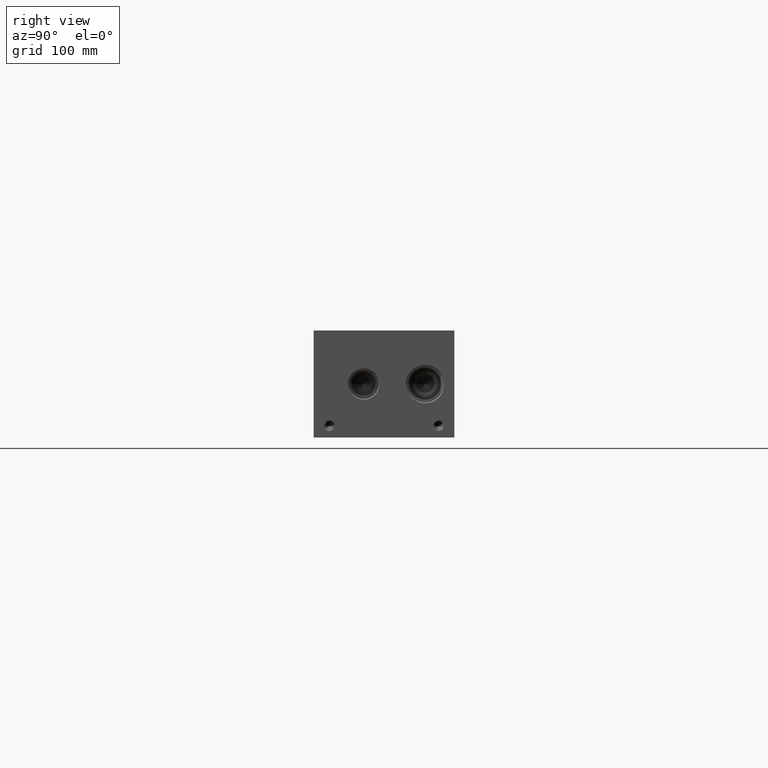
[diagram: clean part render]
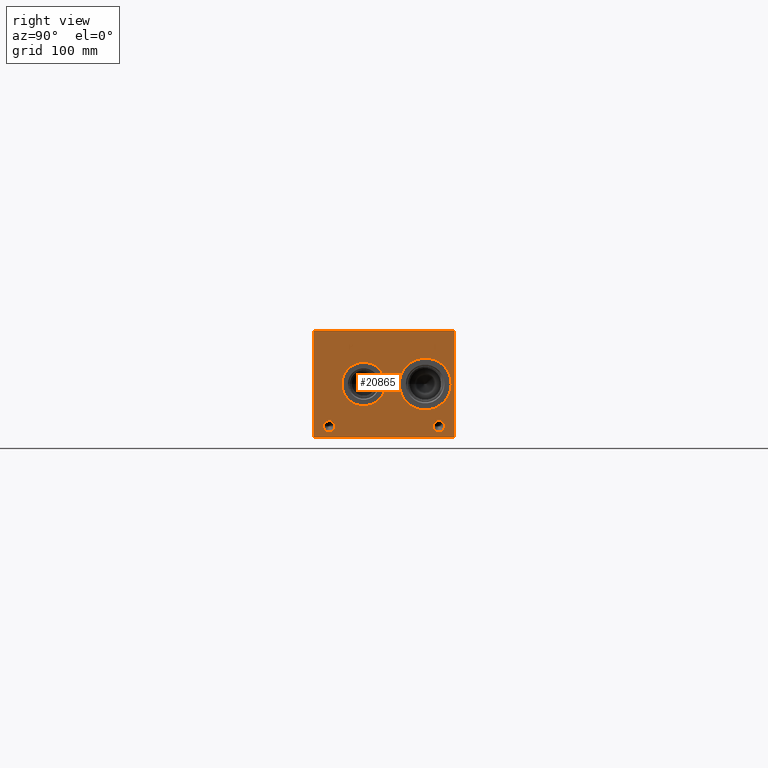
[diagram: same view with one face highlighted and labeled with its STEP entity id]
A machine part, right view. The second image highlights one B-rep face of the part: STEP entity #20865.
In plain terms, the highlighted planar face has unit normal (1, 0, 0).
Its self-contained STEP definition (entity closure, byte-faithful):
#673=CIRCLE('',#21823,29.2862);
#674=CIRCLE('',#21824,29.2862);
#675=CIRCLE('',#21825,24.5618);
#676=CIRCLE('',#21826,24.5618);
#677=CIRCLE('',#21827,6.35);
#678=CIRCLE('',#21828,6.35);
#679=CIRCLE('',#21829,6.35);
#680=CIRCLE('',#21830,6.35);
#1893=B_SPLINE_CURVE_WITH_KNOTS('',2,(#34489,#34490,#34491,#34492),
 .UNSPECIFIED.,.F.,.F.,(3,1,3),(0.,1.,2.),.UNSPECIFIED.);
#1895=B_SPLINE_CURVE_WITH_KNOTS('',2,(#34510,#34511,#34512,#34513),
 .UNSPECIFIED.,.F.,.F.,(3,1,3),(0.,1.,2.),.UNSPECIFIED.);
#1897=B_SPLINE_CURVE_WITH_KNOTS('',2,(#34559,#34560,#34561,#34562),
 .UNSPECIFIED.,.F.,.F.,(3,1,3),(0.,1.,2.),.UNSPECIFIED.);
#1899=B_SPLINE_CURVE_WITH_KNOTS('',2,(#34577,#34578,#34579,#34580),
 .UNSPECIFIED.,.F.,.F.,(3,1,3),(0.,1.,2.),.UNSPECIFIED.);
#1994=FACE_BOUND('',#3990,.T.);
#1995=FACE_BOUND('',#3991,.T.);
#1996=FACE_BOUND('',#3992,.T.);
#1997=FACE_BOUND('',#3993,.T.);
#1998=FACE_BOUND('',#3994,.T.);
#1999=FACE_BOUND('',#3995,.T.);
#2776=FACE_OUTER_BOUND('',#3989,.T.);
#3989=EDGE_LOOP('',(#16484,#16485,#16486,#16487));
#3990=EDGE_LOOP('',(#16488,#16489));
#3991=EDGE_LOOP('',(#16490,#16491));
#3992=EDGE_LOOP('',(#16492,#16493));
#3993=EDGE_LOOP('',(#16494,#16495));
#3994=EDGE_LOOP('',(#16496,#16497,#16498,#16499,#16500,#16501,#16502,#16503));
#3995=EDGE_LOOP('',(#16504,#16505,#16506,#16507,#16508,#16509,#16510,#16511,
#16512));
#4711=LINE('',#28346,#6419);
#5879=LINE('',#34522,#7587);
#5882=LINE('',#34528,#7590);
#5885=LINE('',#34534,#7593);
#5888=LINE('',#34540,#7596);
#5891=LINE('',#34546,#7599);
#5895=LINE('',#34588,#7603);
#5896=LINE('',#34590,#7604);
#5897=LINE('',#34591,#7605);
#5898=LINE('',#34610,#7606);
#5899=LINE('',#34612,#7607);
#5900=LINE('',#34614,#7608);
#5901=LINE('',#34616,#7609);
#5902=LINE('',#34618,#7610);
#5903=LINE('',#34620,#7611);
#5904=LINE('',#34622,#7612);
#5905=LINE('',#34623,#7613);
#6419=VECTOR('',#23183,10.);
#7587=VECTOR('',#25159,10.);
#7590=VECTOR('',#25164,10.);
#7593=VECTOR('',#25169,10.);
#7596=VECTOR('',#25174,10.);
#7599=VECTOR('',#25179,10.);
#7603=VECTOR('',#25187,10.);
#7604=VECTOR('',#25188,10.);
#7605=VECTOR('',#25189,10.);
#7606=VECTOR('',#25206,10.);
#7607=VECTOR('',#25207,10.);
#7608=VECTOR('',#25208,10.);
#7609=VECTOR('',#25209,10.);
#7610=VECTOR('',#25210,10.);
#7611=VECTOR('',#25211,10.);
#7612=VECTOR('',#25212,10.);
#7613=VECTOR('',#25213,10.);
#8116=VERTEX_POINT('',#28343);
#8117=VERTEX_POINT('',#28345);
#9211=VERTEX_POINT('',#34487);
#9212=VERTEX_POINT('',#34488);
#9215=VERTEX_POINT('',#34509);
#9217=VERTEX_POINT('',#34521);
#9219=VERTEX_POINT('',#34527);
#9221=VERTEX_POINT('',#34533);
#9223=VERTEX_POINT('',#34539);
#9225=VERTEX_POINT('',#34545);
#9227=VERTEX_POINT('',#34558);
#9229=VERTEX_POINT('',#34587);
#9230=VERTEX_POINT('',#34589);
#9231=VERTEX_POINT('',#34592);
#9232=VERTEX_POINT('',#34593);
#9233=VERTEX_POINT('',#34596);
#9234=VERTEX_POINT('',#34597);
#9235=VERTEX_POINT('',#34600);
#9236=VERTEX_POINT('',#34601);
#9237=VERTEX_POINT('',#34604);
#9238=VERTEX_POINT('',#34605);
#9239=VERTEX_POINT('',#34608);
#9240=VERTEX_POINT('',#34609);
#9241=VERTEX_POINT('',#34611);
#9242=VERTEX_POINT('',#34613);
#9243=VERTEX_POINT('',#34615);
#9244=VERTEX_POINT('',#34617);
#9245=VERTEX_POINT('',#34619);
#9246=VERTEX_POINT('',#34621);
#10217=EDGE_CURVE('',#8116,#8117,#4711,.T.);
#11844=EDGE_CURVE('',#9211,#9212,#1893,.T.);
#11848=EDGE_CURVE('',#9215,#9211,#1895,.T.);
#11851=EDGE_CURVE('',#9217,#9215,#5879,.T.);
#11854=EDGE_CURVE('',#9219,#9217,#5882,.T.);
#11857=EDGE_CURVE('',#9221,#9219,#5885,.T.);
#11860=EDGE_CURVE('',#9223,#9221,#5888,.T.);
#11863=EDGE_CURVE('',#9225,#9223,#5891,.T.);
#11866=EDGE_CURVE('',#9227,#9225,#1897,.T.);
#11869=EDGE_CURVE('',#9212,#9227,#1899,.T.);
#11871=EDGE_CURVE('',#8116,#9229,#5895,.T.);
#11872=EDGE_CURVE('',#9229,#9230,#5896,.T.);
#11873=EDGE_CURVE('',#8117,#9230,#5897,.T.);
#11874=EDGE_CURVE('',#9231,#9232,#673,.T.);
#11875=EDGE_CURVE('',#9232,#9231,#674,.T.);
#11876=EDGE_CURVE('',#9233,#9234,#675,.T.);
#11877=EDGE_CURVE('',#9234,#9233,#676,.T.);
#11878=EDGE_CURVE('',#9235,#9236,#677,.T.);
#11879=EDGE_CURVE('',#9236,#9235,#678,.T.);
#11880=EDGE_CURVE('',#9237,#9238,#679,.T.);
#11881=EDGE_CURVE('',#9238,#9237,#680,.T.);
#11882=EDGE_CURVE('',#9239,#9240,#5898,.T.);
#11883=EDGE_CURVE('',#9240,#9241,#5899,.T.);
#11884=EDGE_CURVE('',#9241,#9242,#5900,.T.);
#11885=EDGE_CURVE('',#9242,#9243,#5901,.T.);
#11886=EDGE_CURVE('',#9243,#9244,#5902,.T.);
#11887=EDGE_CURVE('',#9244,#9245,#5903,.T.);
#11888=EDGE_CURVE('',#9245,#9246,#5904,.T.);
#11889=EDGE_CURVE('',#9246,#9239,#5905,.T.);
#16484=ORIENTED_EDGE('',*,*,#11871,.T.);
#16485=ORIENTED_EDGE('',*,*,#11872,.T.);
#16486=ORIENTED_EDGE('',*,*,#11873,.F.);
#16487=ORIENTED_EDGE('',*,*,#10217,.F.);
#16488=ORIENTED_EDGE('',*,*,#11874,.T.);
#16489=ORIENTED_EDGE('',*,*,#11875,.T.);
#16490=ORIENTED_EDGE('',*,*,#11876,.T.);
#16491=ORIENTED_EDGE('',*,*,#11877,.T.);
#16492=ORIENTED_EDGE('',*,*,#11878,.T.);
#16493=ORIENTED_EDGE('',*,*,#11879,.T.);
#16494=ORIENTED_EDGE('',*,*,#11880,.T.);
#16495=ORIENTED_EDGE('',*,*,#11881,.T.);
#16496=ORIENTED_EDGE('',*,*,#11882,.T.);
#16497=ORIENTED_EDGE('',*,*,#11883,.T.);
#16498=ORIENTED_EDGE('',*,*,#11884,.T.);
#16499=ORIENTED_EDGE('',*,*,#11885,.T.);
#16500=ORIENTED_EDGE('',*,*,#11886,.T.);
#16501=ORIENTED_EDGE('',*,*,#11887,.T.);
#16502=ORIENTED_EDGE('',*,*,#11888,.T.);
#16503=ORIENTED_EDGE('',*,*,#11889,.T.);
#16504=ORIENTED_EDGE('',*,*,#11844,.T.);
#16505=ORIENTED_EDGE('',*,*,#11869,.T.);
#16506=ORIENTED_EDGE('',*,*,#11866,.T.);
#16507=ORIENTED_EDGE('',*,*,#11863,.T.);
#16508=ORIENTED_EDGE('',*,*,#11860,.T.);
#16509=ORIENTED_EDGE('',*,*,#11857,.T.);
#16510=ORIENTED_EDGE('',*,*,#11854,.T.);
#16511=ORIENTED_EDGE('',*,*,#11851,.T.);
#16512=ORIENTED_EDGE('',*,*,#11848,.T.);
#19517=PLANE('',#21822);
#20865=ADVANCED_FACE('',(#2776,#1994,#1995,#1996,#1997,#1998,#1999),#19517,
 .T.);
#21822=AXIS2_PLACEMENT_3D('',#34586,#25185,#25186);
#21823=AXIS2_PLACEMENT_3D('',#34594,#25190,#25191);
#21824=AXIS2_PLACEMENT_3D('',#34595,#25192,#25193);
#21825=AXIS2_PLACEMENT_3D('',#34598,#25194,#25195);
#21826=AXIS2_PLACEMENT_3D('',#34599,#25196,#25197);
#21827=AXIS2_PLACEMENT_3D('',#34602,#25198,#25199);
#21828=AXIS2_PLACEMENT_3D('',#34603,#25200,#25201);
#21829=AXIS2_PLACEMENT_3D('',#34606,#25202,#25203);
#21830=AXIS2_PLACEMENT_3D('',#34607,#25204,#25205);
#23183=DIRECTION('',(0.,0.,1.));
#25159=DIRECTION('',(0.,1.,0.));
#25164=DIRECTION('',(0.,0.,1.));
#25169=DIRECTION('',(0.,-1.,0.));
#25174=DIRECTION('',(0.,0.,-1.));
#25179=DIRECTION('',(0.,-1.,0.));
#25185=DIRECTION('center_axis',(1.,0.,0.));
#25186=DIRECTION('ref_axis',(0.,1.,0.));
#25187=DIRECTION('',(0.,1.,0.));
#25188=DIRECTION('',(0.,0.,1.));
#25189=DIRECTION('',(0.,1.,0.));
#25190=DIRECTION('center_axis',(-1.,0.,0.));
#25191=DIRECTION('ref_axis',(0.,1.,0.));
#25192=DIRECTION('center_axis',(-1.,0.,0.));
#25193=DIRECTION('ref_axis',(0.,1.,0.));
#25194=DIRECTION('center_axis',(-1.,0.,0.));
#25195=DIRECTION('ref_axis',(0.,1.,0.));
#25196=DIRECTION('center_axis',(-1.,0.,0.));
#25197=DIRECTION('ref_axis',(0.,1.,0.));
#25198=DIRECTION('center_axis',(-1.,0.,0.));
#25199=DIRECTION('ref_axis',(0.,1.,0.));
#25200=DIRECTION('center_axis',(-1.,0.,0.));
#25201=DIRECTION('ref_axis',(0.,1.,0.));
#25202=DIRECTION('center_axis',(-1.,0.,0.));
#25203=DIRECTION('ref_axis',(0.,1.,0.));
#25204=DIRECTION('center_axis',(-1.,0.,0.));
#25205=DIRECTION('ref_axis',(0.,1.,0.));
#25206=DIRECTION('',(0.,-1.,0.));
#25207=DIRECTION('',(0.,0.,1.));
#25208=DIRECTION('',(0.,-1.,0.));
#25209=DIRECTION('',(0.,0.,1.));
#25210=DIRECTION('',(0.,1.,0.));
#25211=DIRECTION('',(0.,0.,-1.));
#25212=DIRECTION('',(0.,-1.,0.));
#25213=DIRECTION('',(0.,0.,-1.));
#28343=CARTESIAN_POINT('',(800.1,0.,0.));
#28345=CARTESIAN_POINT('',(800.1,0.,120.65));
#28346=CARTESIAN_POINT('',(800.1,0.,0.));
#34487=CARTESIAN_POINT('',(800.1,43.3721672023594,105.140768143971));
#34488=CARTESIAN_POINT('',(800.1,44.128609654532,103.622737372604));
#34489=CARTESIAN_POINT('Ctrl Pts',(800.1,43.3721672023594,105.140768143971));
#34490=CARTESIAN_POINT('Ctrl Pts',(800.1,43.7272320268486,104.898912393956));
#34491=CARTESIAN_POINT('Ctrl Pts',(800.1,44.128609654532,104.152761675827));
#34492=CARTESIAN_POINT('Ctrl Pts',(800.1,44.128609654532,103.622737372604));
#34509=CARTESIAN_POINT('',(800.1,41.7100521543883,105.536999904633));
#34510=CARTESIAN_POINT('Ctrl Pts',(800.1,41.7100521543883,105.536999904633));
#34511=CARTESIAN_POINT('Ctrl Pts',(800.1,42.2760975267624,105.536999904633));
#34512=CARTESIAN_POINT('Ctrl Pts',(800.1,43.068561048086,105.351748691856));
#34513=CARTESIAN_POINT('Ctrl Pts',(800.1,43.3721672023594,105.140768143971));
#34521=CARTESIAN_POINT('',(800.1,40.1148333776978,105.536999904633));
#34522=CARTESIAN_POINT('',(800.1,20.0574166888489,105.536999904633));
#34527=CARTESIAN_POINT('',(800.1,40.1148333776978,99.187));
#34528=CARTESIAN_POINT('',(800.1,40.1148333776978,49.5935));
#34533=CARTESIAN_POINT('',(800.1,40.9587555692373,99.187));
#34534=CARTESIAN_POINT('',(800.1,20.4793777846186,99.187));
#34539=CARTESIAN_POINT('',(800.1,40.9587555692373,101.554098829928));
#34540=CARTESIAN_POINT('',(800.1,40.9587555692373,50.7770494149639));
#34545=CARTESIAN_POINT('',(800.1,41.6740310852372,101.554098829928));
#34546=CARTESIAN_POINT('',(800.1,20.8370155426186,101.554098829928));
#34558=CARTESIAN_POINT('',(800.1,43.5728560162011,102.21276980869));
#34559=CARTESIAN_POINT('Ctrl Pts',(800.1,43.5728560162011,102.21276980869));
#34560=CARTESIAN_POINT('Ctrl Pts',(800.1,43.2435205268198,101.888580186331));
#34561=CARTESIAN_POINT('Ctrl Pts',(800.1,42.3532855320861,101.554098829928));
#34562=CARTESIAN_POINT('Ctrl Pts',(800.1,41.6740310852372,101.554098829928));
#34577=CARTESIAN_POINT('Ctrl Pts',(800.1,44.128609654532,103.622737372604));
#34578=CARTESIAN_POINT('Ctrl Pts',(800.1,44.128609654532,103.211068010877));
#34579=CARTESIAN_POINT('Ctrl Pts',(800.1,43.8352952343018,102.47006315977));
#34580=CARTESIAN_POINT('Ctrl Pts',(800.1,43.5728560162011,102.21276980869));
#34586=CARTESIAN_POINT('Origin',(800.1,0.,0.));
#34587=CARTESIAN_POINT('',(800.1,158.75,0.));
#34588=CARTESIAN_POINT('',(800.1,0.,0.));
#34589=CARTESIAN_POINT('',(800.1,158.75,120.65));
#34590=CARTESIAN_POINT('',(800.1,158.75,0.));
#34591=CARTESIAN_POINT('',(800.1,0.,120.65));
#34592=CARTESIAN_POINT('',(800.1,155.1178,60.325));
#34593=CARTESIAN_POINT('',(800.1,96.5454,60.325));
#34594=CARTESIAN_POINT('Origin',(800.1,125.8316,60.325));
#34595=CARTESIAN_POINT('Origin',(800.1,125.8316,60.325));
#34596=CARTESIAN_POINT('',(800.1,81.0514,60.325));
#34597=CARTESIAN_POINT('',(800.1,31.9278,60.325));
#34598=CARTESIAN_POINT('Origin',(800.1,56.4896,60.325));
#34599=CARTESIAN_POINT('Origin',(800.1,56.4896,60.325));
#34600=CARTESIAN_POINT('',(800.1,147.6248,12.7));
#34601=CARTESIAN_POINT('',(800.1,134.9248,12.7));
#34602=CARTESIAN_POINT('Origin',(800.1,141.2748,12.7));
#34603=CARTESIAN_POINT('Origin',(800.1,141.2748,12.7));
#34604=CARTESIAN_POINT('',(800.1,23.7998,12.7));
#34605=CARTESIAN_POINT('',(800.1,11.0998,12.7));
#34606=CARTESIAN_POINT('Origin',(800.1,17.4498,12.7));
#34607=CARTESIAN_POINT('Origin',(800.1,17.4498,12.7));
#34608=CARTESIAN_POINT('',(800.1,137.182765271453,99.187));
#34609=CARTESIAN_POINT('',(800.1,136.338843079914,99.187));
#34610=CARTESIAN_POINT('',(800.1,68.5913826357265,99.187));
#34611=CARTESIAN_POINT('',(800.1,136.338843079914,104.785703319482));
#34612=CARTESIAN_POINT('',(800.1,136.338843079914,49.5935));
#34613=CARTESIAN_POINT('',(800.1,134.208454132978,104.785703319482));
#34614=CARTESIAN_POINT('',(800.1,68.1694215399568,104.785703319482));
#34615=CARTESIAN_POINT('',(800.1,134.208454132978,105.536999904633));
#34616=CARTESIAN_POINT('',(800.1,134.208454132978,52.3928516597408));
#34617=CARTESIAN_POINT('',(800.1,139.313154218388,105.536999904633));
#34618=CARTESIAN_POINT('',(800.1,67.1042270664892,105.536999904633));
#34619=CARTESIAN_POINT('',(800.1,139.313154218388,104.785703319482));
#34620=CARTESIAN_POINT('',(800.1,139.313154218388,52.7684999523163));
#34621=CARTESIAN_POINT('',(800.1,137.182765271453,104.785703319482));
#34622=CARTESIAN_POINT('',(800.1,69.656577109194,104.785703319482));
#34623=CARTESIAN_POINT('',(800.1,137.182765271453,52.3928516597408));